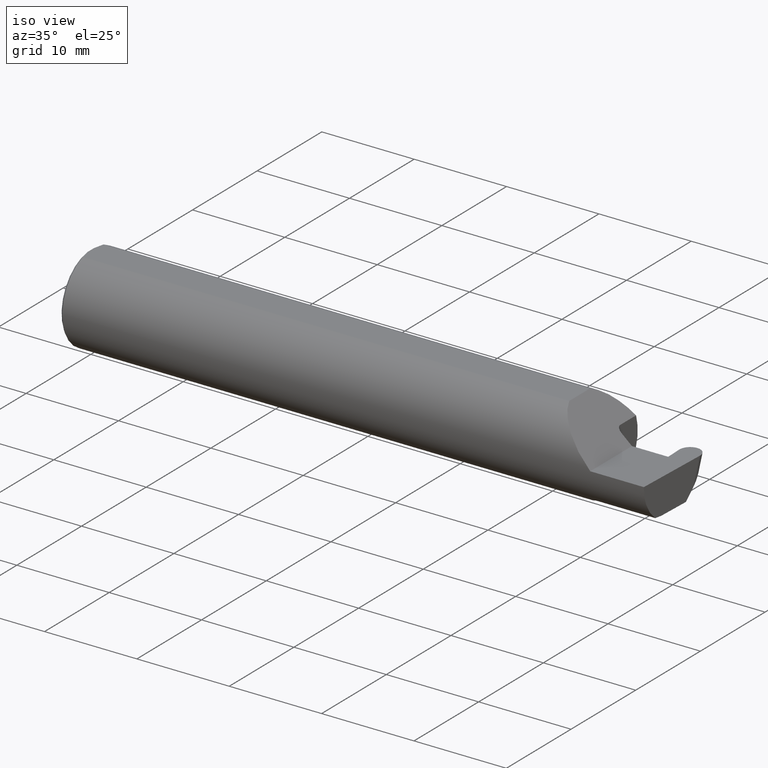
[diagram: clean part render]
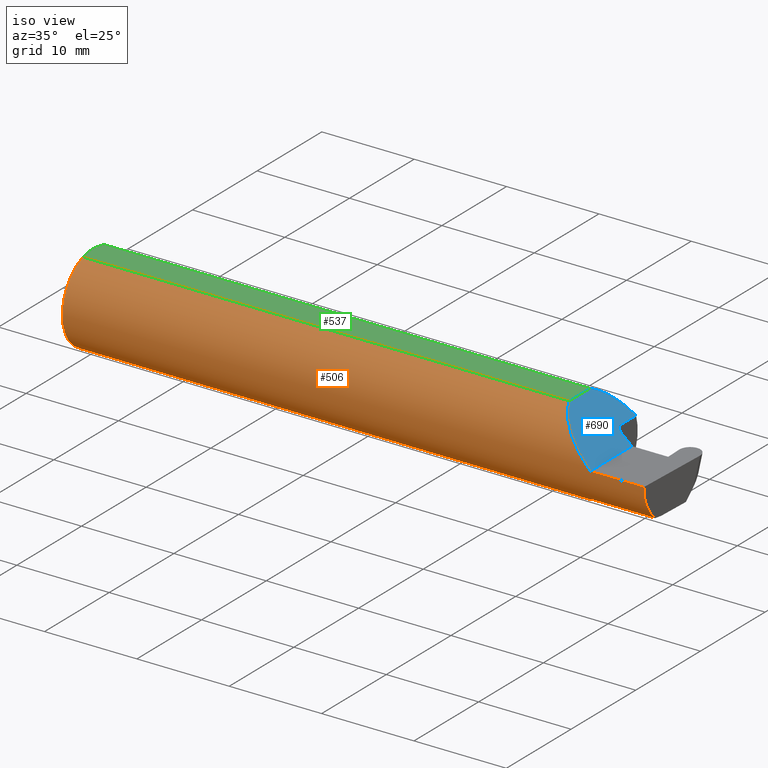
[diagram: same view with three faces highlighted in distinct colors, each labeled with its STEP entity id]
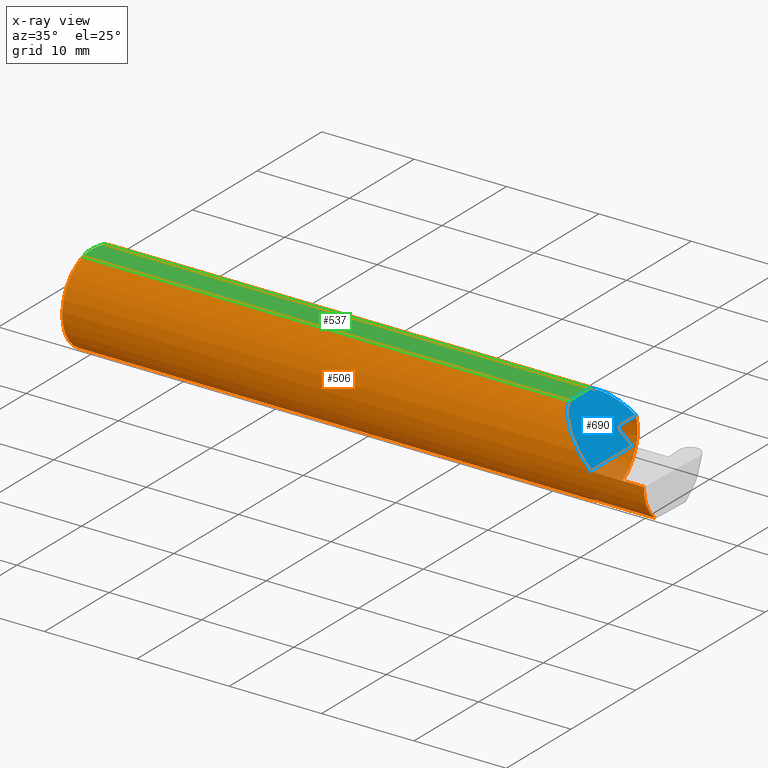
[diagram: x-ray of the same camera — body ghosted, the three highlighted faces saturated]
A machine part, iso view with three faces highlighted in distinct colors.
The next image is the same camera in x-ray (body ghosted, the three faces saturated) — at least one of them is partly hidden behind the body in this view.
Their STEP definitions:

[orange] entity #506 — the highlighted cylindrical surface (partial cylindrical patch) has radius 4.7587 mm, axis along (-1, -0, -0).
#2 = CARTESIAN_POINT ( 'NONE',  ( 2.200358271039143165, -0.07873626113568055196, -0.1700887912276896896 ) ) ;
#7 = CIRCLE ( 'NONE', #386, 0.1873499999999999888 ) ;
#10 = ORIENTED_EDGE ( 'NONE', *, *, #128, .T. ) ;
#16 = CARTESIAN_POINT ( 'NONE',  ( 2.260000000000000231, -0.1873499999999999888, 2.939152317953647352E-17 ) ) ;
#47 = CARTESIAN_POINT ( 'NONE',  ( 2.200000000000000178, -0.06851976604679038685, -0.1743704796142199753 ) ) ;
#50 = CARTESIAN_POINT ( 'NONE',  ( 2.083649999999998670, -0.06325108694718283020, 0.1763499999999999235 ) ) ;
#58 = CARTESIAN_POINT ( 'NONE',  ( 3.749399456654646757E-32, -0.1873499999999999610, 3.061616997868383634E-16 ) ) ;
#59 = ORIENTED_EDGE ( 'NONE', *, *, #570, .T. ) ;
#60 = B_SPLINE_CURVE_WITH_KNOTS ( 'NONE', 3,
 ( #167, #229, #563, #553, #108, #281, #454, #335, #499, #2, #226, #171 ),
 .UNSPECIFIED., .F., .F.,
 ( 4, 2, 2, 2, 2, 4 ),
 ( 1.967976973658592312E-07, 0.0002120314145722274079, 0.0004238660314470889213, 0.0008475352651968000219, 0.001271204498946511014, 0.001694873732696222006 ),
 .UNSPECIFIED. ) ;
#74 = VERTEX_POINT ( 'NONE', #131 ) ;
#96 = DIRECTION ( 'NONE',  ( 1.000000000000000000, 0.000000000000000000, 0.000000000000000000 ) ) ;
#98 = ORIENTED_EDGE ( 'NONE', *, *, #492, .T. ) ;
#103 = VERTEX_POINT ( 'NONE', #50 ) ;
#107 = VERTEX_POINT ( 'NONE', #381 ) ;
#108 = CARTESIAN_POINT ( 'NONE',  ( 2.213203859946834662, -0.1120371980050636485, -0.1501764597936561252 ) ) ;
#110 = ORIENTED_EDGE ( 'NONE', *, *, #319, .F. ) ;
#111 = DIRECTION ( 'NONE',  ( 0.000000000000000000, 0.000000000000000000, -1.000000000000000000 ) ) ;
#120 = VERTEX_POINT ( 'NONE', #47 ) ;
#128 = EDGE_CURVE ( 'NONE', #678, #401, #299, .T. ) ;
#130 = FACE_OUTER_BOUND ( 'NONE', #463, .T. ) ;
#131 = CARTESIAN_POINT ( 'NONE',  ( 2.225000000000000089, -0.1172600179964003730, -0.1461167706989306148 ) ) ;
#133 = CARTESIAN_POINT ( 'NONE',  ( 0.000000000000000000, 0.000000000000000000, 0.000000000000000000 ) ) ;
#142 = CARTESIAN_POINT ( 'NONE',  ( 2.488576259503493926, -0.1873499999999999888, 0.000000000000000000 ) ) ;
#146 = CARTESIAN_POINT ( 'NONE',  ( 2.200000000000000178, 0.000000000000000000, 0.000000000000000000 ) ) ;
#147 = ORIENTED_EDGE ( 'NONE', *, *, #513, .F. ) ;
#153 = DIRECTION ( 'NONE',  ( 0.000000000000000000, 0.000000000000000000, 1.000000000000000000 ) ) ;
#167 = CARTESIAN_POINT ( 'NONE',  ( 2.225000000000000089, -0.1172600179964003730, -0.1461167706989306148 ) ) ;
#170 = EDGE_CURVE ( 'NONE', #443, #360, #266, .T. ) ;
#171 = CARTESIAN_POINT ( 'NONE',  ( 2.200000000000000178, -0.06851976604679038685, -0.1743704796142199753 ) ) ;
#194 = VERTEX_POINT ( 'NONE', #442 ) ;
#200 = EDGE_CURVE ( 'NONE', #120, #573, #374, .T. ) ;
#201 = CARTESIAN_POINT ( 'NONE',  ( 0.000000000000000000, 0.06325108694718235836, 0.1763499999999999235 ) ) ;
#208 = CARTESIAN_POINT ( 'NONE',  ( 2.488471823259917226, -0.1172600179964003730, -0.1461167706989304760 ) ) ;
#214 = ORIENTED_EDGE ( 'NONE', *, *, #652, .F. ) ;
#226 = CARTESIAN_POINT ( 'NONE',  ( 2.199999999999999289, -0.07368234487347168071, -0.1723418180300748670 ) ) ;
#229 = CARTESIAN_POINT ( 'NONE',  ( 2.222174967710398796, -0.1172600179964003314, -0.1461167706989305870 ) ) ;
#233 = CARTESIAN_POINT ( 'NONE',  ( 2.178182770154592163, -0.1873500000000000443, 0.08181722984540684696 ) ) ;
#236 = CARTESIAN_POINT ( 'NONE',  ( 2.260000000000000231, -0.1873499999999999888, 2.939152317953647352E-17 ) ) ;
#245 = VERTEX_POINT ( 'NONE', #16 ) ;
#262 = EDGE_CURVE ( 'NONE', #401, #245, #405, .T. ) ;
#266 = LINE ( 'NONE', #201, #290 ) ;
#274 = CARTESIAN_POINT ( 'NONE',  ( 2.200000000000000178, 0.1774824568795463631, 0.05999999999999961614 ) ) ;
#281 = CARTESIAN_POINT ( 'NONE',  ( 2.208439486659306450, -0.1064616213911156045, -0.1542305641651502135 ) ) ;
#287 = ORIENTED_EDGE ( 'NONE', *, *, #170, .F. ) ;
#290 = VECTOR ( 'NONE', #430, 39.37007874015748143 ) ;
#297 = CYLINDRICAL_SURFACE ( 'NONE', #330, 0.1873499999999999888 ) ;
#299 =( BOUNDED_CURVE ( )  B_SPLINE_CURVE ( 3, ( #208, #485, #701, #142 ),
 .UNSPECIFIED., .F., .F. ) 
 B_SPLINE_CURVE_WITH_KNOTS ( ( 4, 4 ),
 ( 5.852427379562184839, 6.746954780470634461 ),
 .UNSPECIFIED. ) 
 CURVE ( )  GEOMETRIC_REPRESENTATION_ITEM ( )  RATIONAL_B_SPLINE_CURVE ( ( 1.000000000000000000, 0.9344226172588800949, 0.9344226172588800949, 1.000000000000000000 ) ) 
 REPRESENTATION_ITEM ( '' )  );
#307 = AXIS2_PLACEMENT_3D ( 'NONE', #323, #96, #653 ) ;
#319 = EDGE_CURVE ( 'NONE', #107, #103, #669, .T. ) ;
#323 = CARTESIAN_POINT ( 'NONE',  ( 0.009999999999999346217, 0.000000000000000000, 0.000000000000000000 ) ) ;
#326 = CARTESIAN_POINT ( 'NONE',  ( 2.144848040052163896, 0.1588376980957759976, 0.1151519599478346284 ) ) ;
#328 =( BOUNDED_CURVE ( )  B_SPLINE_CURVE ( 3, ( #236, #233, #680, #568 ),
 .UNSPECIFIED., .F., .F. ) 
 B_SPLINE_CURVE_WITH_KNOTS ( ( 4, 4 ),
 ( 4.712388980384688786, 5.938809479923471635 ),
 .UNSPECIFIED. ) 
 CURVE ( )  GEOMETRIC_REPRESENTATION_ITEM ( )  RATIONAL_B_SPLINE_CURVE ( ( 1.000000000000000000, 0.8785364999009659392, 0.8785364999009659392, 1.000000000000000000 ) ) 
 REPRESENTATION_ITEM ( '' )  );
#330 = AXIS2_PLACEMENT_3D ( 'NONE', #133, #520, #153 ) ;
#331 = CARTESIAN_POINT ( 'NONE',  ( 2.083649999999998670, 0.06325108694718283020, 0.1763499999999999235 ) ) ;
#332 = CARTESIAN_POINT ( 'NONE',  ( 0.000000000000000000, -0.06325108694718235836, 0.1763499999999999235 ) ) ;
#334 = EDGE_CURVE ( 'NONE', #107, #194, #7, .T. ) ;
#335 = CARTESIAN_POINT ( 'NONE',  ( 2.202960551809340028, -0.09317341542745716243, -0.1626248379125198873 ) ) ;
#350 = CARTESIAN_POINT ( 'NONE',  ( 2.488576259503493926, -0.1873499999999999888, 0.000000000000000000 ) ) ;
#360 = VERTEX_POINT ( 'NONE', #511 ) ;
#371 = CARTESIAN_POINT ( 'NONE',  ( 2.200000000000000178, 0.1774824568795463631, 0.05999999999999961614 ) ) ;
#374 = CIRCLE ( 'NONE', #649, 0.1873499999999999888 ) ;
#381 = CARTESIAN_POINT ( 'NONE',  ( 0.009999999999999346217, -0.06325108694718235836, 0.1763499999999999235 ) ) ;
#386 = AXIS2_PLACEMENT_3D ( 'NONE', #616, #612, #111 ) ;
#401 = VERTEX_POINT ( 'NONE', #350 ) ;
#405 = LINE ( 'NONE', #58, #448 ) ;
#430 = DIRECTION ( 'NONE',  ( -1.000000000000000000, -0.000000000000000000, -0.000000000000000000 ) ) ;
#432 = DIRECTION ( 'NONE',  ( -1.000000000000000000, -6.448948547284692709E-16, -0.000000000000000000 ) ) ;
#442 = CARTESIAN_POINT ( 'NONE',  ( 0.009999999999999346217, 0.000000000000000000, -0.1873499999999999888 ) ) ;
#443 = VERTEX_POINT ( 'NONE', #687 ) ;
#448 = VECTOR ( 'NONE', #561, 39.37007874015748143 ) ;
#453 = ORIENTED_EDGE ( 'NONE', *, *, #671, .T. ) ;
#454 = CARTESIAN_POINT ( 'NONE',  ( 2.206304331342287650, -0.1022198306720688288, -0.1570962426853820260 ) ) ;
#463 = EDGE_LOOP ( 'NONE', ( #147, #10, #507, #98, #110, #596, #59, #287, #453, #558, #214 ) ) ;
#485 = CARTESIAN_POINT ( 'NONE',  ( 2.487529306701961485, -0.1623470442677539816, -0.1099340280425340349 ) ) ;
#492 = EDGE_CURVE ( 'NONE', #245, #103, #328, .T. ) ;
#499 = CARTESIAN_POINT ( 'NONE',  ( 2.201843912362377864, -0.08846956905169063579, -0.1652353808078973474 ) ) ;
#506 = ADVANCED_FACE ( 'NONE', ( #130 ), #297, .T. ) ;
#507 = ORIENTED_EDGE ( 'NONE', *, *, #262, .T. ) ;
#511 = CARTESIAN_POINT ( 'NONE',  ( 0.009999999999999346217, 0.06325108694718235836, 0.1763499999999999235 ) ) ;
#513 = EDGE_CURVE ( 'NONE', #678, #74, #531, .T. ) ;
#520 = DIRECTION ( 'NONE',  ( -1.000000000000000000, -0.000000000000000000, -0.000000000000000000 ) ) ;
#525 = VECTOR ( 'NONE', #432, 39.37007874015748143 ) ;
#531 = LINE ( 'NONE', #597, #525 ) ;
#548 = CARTESIAN_POINT ( 'NONE',  ( 2.488471823259917226, -0.1172600179964003730, -0.1461167706989304760 ) ) ;
#549 = DIRECTION ( 'NONE',  ( 0.000000000000000000, 1.000000000000000000, 0.000000000000000000 ) ) ;
#553 = CARTESIAN_POINT ( 'NONE',  ( 2.215028532764138358, -0.1137241120808232669, -0.1488947809299406566 ) ) ;
#556 = CARTESIAN_POINT ( 'NONE',  ( 2.103305020982357387, 0.1180511404724818164, 0.1566949790176410395 ) ) ;
#558 = ORIENTED_EDGE ( 'NONE', *, *, #200, .F. ) ;
#561 = DIRECTION ( 'NONE',  ( -1.000000000000000000, -0.000000000000000000, -0.000000000000000000 ) ) ;
#563 = CARTESIAN_POINT ( 'NONE',  ( 2.219511795768554840, -0.1163687266324231473, -0.1468371510166791294 ) ) ;
#568 = CARTESIAN_POINT ( 'NONE',  ( 2.083649999999998670, -0.06325108694718283020, 0.1763499999999999235 ) ) ;
#570 = EDGE_CURVE ( 'NONE', #194, #360, #621, .T. ) ;
#573 = VERTEX_POINT ( 'NONE', #371 ) ;
#576 =( BOUNDED_CURVE ( )  B_SPLINE_CURVE ( 3, ( #331, #556, #326, #274 ),
 .UNSPECIFIED., .F., .F. ) 
 B_SPLINE_CURVE_WITH_KNOTS ( ( 4, 4 ),
 ( 0.3443758272561143752, 1.244796402594304796 ),
 .UNSPECIFIED. ) 
 CURVE ( )  GEOMETRIC_REPRESENTATION_ITEM ( )  RATIONAL_B_SPLINE_CURVE ( ( 1.000000000000000000, 0.9335704097038357574, 0.9335704097038357574, 1.000000000000000000 ) ) 
 REPRESENTATION_ITEM ( '' )  );
#596 = ORIENTED_EDGE ( 'NONE', *, *, #334, .T. ) ;
#597 = CARTESIAN_POINT ( 'NONE',  ( 2.318402844999999601, -0.1172600179964004702, -0.1461167706989304760 ) ) ;
#604 = DIRECTION ( 'NONE',  ( 1.000000000000000000, 6.448948547284692709E-16, 0.000000000000000000 ) ) ;
#612 = DIRECTION ( 'NONE',  ( 1.000000000000000000, 0.000000000000000000, 0.000000000000000000 ) ) ;
#616 = CARTESIAN_POINT ( 'NONE',  ( 0.009999999999999346217, 0.000000000000000000, 0.000000000000000000 ) ) ;
#621 = CIRCLE ( 'NONE', #307, 0.1873499999999999888 ) ;
#649 = AXIS2_PLACEMENT_3D ( 'NONE', #146, #604, #549 ) ;
#652 = EDGE_CURVE ( 'NONE', #74, #120, #60, .T. ) ;
#653 = DIRECTION ( 'NONE',  ( 0.000000000000000000, 0.000000000000000000, -1.000000000000000000 ) ) ;
#662 = DIRECTION ( 'NONE',  ( 1.000000000000000000, 0.000000000000000000, 0.000000000000000000 ) ) ;
#669 = LINE ( 'NONE', #332, #689 ) ;
#671 = EDGE_CURVE ( 'NONE', #443, #573, #576, .T. ) ;
#678 = VERTEX_POINT ( 'NONE', #548 ) ;
#680 = CARTESIAN_POINT ( 'NONE',  ( 2.111272250967329622, -0.1402645296119147678, 0.1487277490326685825 ) ) ;
#687 = CARTESIAN_POINT ( 'NONE',  ( 2.083649999999998670, 0.06325108694718283020, 0.1763499999999999235 ) ) ;
#689 = VECTOR ( 'NONE', #662, 39.37007874015748143 ) ;
#701 = CARTESIAN_POINT ( 'NONE',  ( 2.487566561880238947, -0.1873499999999999610, -0.05781030015605125721 ) ) ;

[blue] entity #690 — the highlighted planar face has unit normal (-0.7071, 0, -0.7071).
#11 = CARTESIAN_POINT ( 'NONE',  ( 2.225000000000000089, 0.06250952145814828165, 0.03500000000000009354 ) ) ;
#14 = ORIENTED_EDGE ( 'NONE', *, *, #492, .F. ) ;
#16 = CARTESIAN_POINT ( 'NONE',  ( 2.260000000000000231, -0.1873499999999999888, 2.939152317953647352E-17 ) ) ;
#50 = CARTESIAN_POINT ( 'NONE',  ( 2.083649999999998670, -0.06325108694718283020, 0.1763499999999999235 ) ) ;
#61 = CARTESIAN_POINT ( 'NONE',  ( 2.200000000000000178, 0.08104282222773613598, 0.05999999999999955369 ) ) ;
#68 = ORIENTED_EDGE ( 'NONE', *, *, #643, .F. ) ;
#77 = DIRECTION ( 'NONE',  ( 0.000000000000000000, 1.000000000000000000, 0.000000000000000000 ) ) ;
#95 = EDGE_CURVE ( 'NONE', #245, #592, #213, .T. ) ;
#103 = VERTEX_POINT ( 'NONE', #50 ) ;
#114 = DIRECTION ( 'NONE',  ( 6.448948547284691722E-16, -1.000000000000000000, -6.448948547284629600E-16 ) ) ;
#166 = ORIENTED_EDGE ( 'NONE', *, *, #277, .F. ) ;
#174 = ORIENTED_EDGE ( 'NONE', *, *, #671, .F. ) ;
#213 = LINE ( 'NONE', #644, #594 ) ;
#215 = CARTESIAN_POINT ( 'NONE',  ( 2.260000000000000231, -0.2500000000000000555, 2.939152317953647352E-17 ) ) ;
#216 = LINE ( 'NONE', #343, #700 ) ;
#222 = FACE_OUTER_BOUND ( 'NONE', #641, .T. ) ;
#230 = CARTESIAN_POINT ( 'NONE',  ( 2.222331837506049901, 0.06186927743178083361, 0.03766816249395004562 ) ) ;
#232 = EDGE_CURVE ( 'NONE', #573, #661, #216, .T. ) ;
#233 = CARTESIAN_POINT ( 'NONE',  ( 2.178182770154592163, -0.1873500000000000443, 0.08181722984540684696 ) ) ;
#236 = CARTESIAN_POINT ( 'NONE',  ( 2.260000000000000231, -0.1873499999999999888, 2.939152317953647352E-17 ) ) ;
#245 = VERTEX_POINT ( 'NONE', #16 ) ;
#263 = ORIENTED_EDGE ( 'NONE', *, *, #457, .F. ) ;
#274 = CARTESIAN_POINT ( 'NONE',  ( 2.200000000000000178, 0.1774824568795463631, 0.05999999999999961614 ) ) ;
#275 = CARTESIAN_POINT ( 'NONE',  ( 2.200842198961673102, 0.07338839382613021600, 0.05915780103832719156 ) ) ;
#277 = EDGE_CURVE ( 'NONE', #661, #292, #533, .T. ) ;
#283 = CARTESIAN_POINT ( 'NONE',  ( 2.199999999999999734, 0.07723724220654794304, 0.05999999999999977573 ) ) ;
#292 = VERTEX_POINT ( 'NONE', #391 ) ;
#311 = CARTESIAN_POINT ( 'NONE',  ( 2.260000000000000231, 0.06664999999999991764, 2.939152317953647352E-17 ) ) ;
#326 = CARTESIAN_POINT ( 'NONE',  ( 2.144848040052163896, 0.1588376980957759976, 0.1151519599478346284 ) ) ;
#328 =( BOUNDED_CURVE ( )  B_SPLINE_CURVE ( 3, ( #236, #233, #680, #568 ),
 .UNSPECIFIED., .F., .F. ) 
 B_SPLINE_CURVE_WITH_KNOTS ( ( 4, 4 ),
 ( 4.712388980384688786, 5.938809479923471635 ),
 .UNSPECIFIED. ) 
 CURVE ( )  GEOMETRIC_REPRESENTATION_ITEM ( )  RATIONAL_B_SPLINE_CURVE ( ( 1.000000000000000000, 0.8785364999009659392, 0.8785364999009659392, 1.000000000000000000 ) ) 
 REPRESENTATION_ITEM ( '' )  );
#331 = CARTESIAN_POINT ( 'NONE',  ( 2.083649999999998670, 0.06325108694718283020, 0.1763499999999999235 ) ) ;
#341 = PLANE ( 'NONE',  #346 ) ;
#343 = CARTESIAN_POINT ( 'NONE',  ( 2.200000000000000178, -0.2500000000000001110, 0.05999999999999934552 ) ) ;
#346 = AXIS2_PLACEMENT_3D ( 'NONE', #215, #397, #608 ) ;
#347 = CARTESIAN_POINT ( 'NONE',  ( 2.219643712645606559, 0.06157137645965355538, 0.04035628735439351217 ) ) ;
#354 = CARTESIAN_POINT ( 'NONE',  ( 2.083649999999998670, -0.2500000000000000555, 0.1763499999999999235 ) ) ;
#359 = LINE ( 'NONE', #354, #552 ) ;
#371 = CARTESIAN_POINT ( 'NONE',  ( 2.200000000000000178, 0.1774824568795463631, 0.05999999999999961614 ) ) ;
#383 =( BOUNDED_CURVE ( )  B_SPLINE_CURVE ( 3, ( #11, #387, #503, #393 ),
 .UNSPECIFIED., .F., .F. ) 
 B_SPLINE_CURVE_WITH_KNOTS ( ( 4, 4 ),
 ( 1.335292090074097437, 1.570796326794897224 ),
 .UNSPECIFIED. ) 
 CURVE ( )  GEOMETRIC_REPRESENTATION_ITEM ( )  RATIONAL_B_SPLINE_CURVE ( ( 1.000000000000000000, 0.9953834841226971708, 0.9953834841226971708, 1.000000000000000000 ) ) 
 REPRESENTATION_ITEM ( '' )  );
#387 = CARTESIAN_POINT ( 'NONE',  ( 2.236476718690367793, 0.06526343940705725544, 0.02352328130963214636 ) ) ;
#388 = CARTESIAN_POINT ( 'NONE',  ( 2.204146777195072016, 0.06733032564037055856, 0.05585322280492718838 ) ) ;
#391 = CARTESIAN_POINT ( 'NONE',  ( 2.225000000000000089, 0.06250952145814828165, 0.03500000000000009354 ) ) ;
#393 = CARTESIAN_POINT ( 'NONE',  ( 2.260000000000000231, 0.06664999999999991764, 2.939152317953647352E-17 ) ) ;
#397 = DIRECTION ( 'NONE',  ( -0.7071067811865441310, 0.000000000000000000, -0.7071067811865510144 ) ) ;
#443 = VERTEX_POINT ( 'NONE', #687 ) ;
#457 = EDGE_CURVE ( 'NONE', #103, #443, #359, .T. ) ;
#492 = EDGE_CURVE ( 'NONE', #245, #103, #328, .T. ) ;
#493 = CARTESIAN_POINT ( 'NONE',  ( 2.225000000000000089, 0.06250952145814828165, 0.03500000000000009354 ) ) ;
#496 = CARTESIAN_POINT ( 'NONE',  ( 2.214233757172356043, 0.06188798250606976359, 0.04576624282764354262 ) ) ;
#503 = CARTESIAN_POINT ( 'NONE',  ( 2.248197494504676097, 0.06665000000000001479, 0.01180250549532441823 ) ) ;
#504 = CARTESIAN_POINT ( 'NONE',  ( 2.206491315391052144, 0.06519110945230532916, 0.05350868460894746270 ) ) ;
#522 = ORIENTED_EDGE ( 'NONE', *, *, #232, .F. ) ;
#533 = B_SPLINE_CURVE_WITH_KNOTS ( 'NONE', 3,
 ( #61, #283, #275, #388, #504, #609, #496, #347, #230, #493 ),
 .UNSPECIFIED., .F., .F.,
 ( 4, 2, 2, 2, 4 ),
 ( 0.0002788109322551143008, 0.0005687008269983710425, 0.0008585907217416278384, 0.001148480616484884526, 0.001438370511228141213 ),
 .UNSPECIFIED. ) ;
#552 = VECTOR ( 'NONE', #77, 39.37007874015748143 ) ;
#556 = CARTESIAN_POINT ( 'NONE',  ( 2.103305020982357387, 0.1180511404724818164, 0.1566949790176410395 ) ) ;
#568 = CARTESIAN_POINT ( 'NONE',  ( 2.083649999999998670, -0.06325108694718283020, 0.1763499999999999235 ) ) ;
#573 = VERTEX_POINT ( 'NONE', #371 ) ;
#576 =( BOUNDED_CURVE ( )  B_SPLINE_CURVE ( 3, ( #331, #556, #326, #274 ),
 .UNSPECIFIED., .F., .F. ) 
 B_SPLINE_CURVE_WITH_KNOTS ( ( 4, 4 ),
 ( 0.3443758272561143752, 1.244796402594304796 ),
 .UNSPECIFIED. ) 
 CURVE ( )  GEOMETRIC_REPRESENTATION_ITEM ( )  RATIONAL_B_SPLINE_CURVE ( ( 1.000000000000000000, 0.9335704097038357574, 0.9335704097038357574, 1.000000000000000000 ) ) 
 REPRESENTATION_ITEM ( '' )  );
#592 = VERTEX_POINT ( 'NONE', #311 ) ;
#594 = VECTOR ( 'NONE', #654, 39.37007874015748143 ) ;
#608 = DIRECTION ( 'NONE',  ( -0.7071067811865509034, 0.000000000000000000, 0.7071067811865440200 ) ) ;
#609 = CARTESIAN_POINT ( 'NONE',  ( 2.211575684638518169, 0.06248591091235528028, 0.04842431536148216614 ) ) ;
#611 = CARTESIAN_POINT ( 'NONE',  ( 2.200000000000000178, 0.08104282222773613598, 0.05999999999999955369 ) ) ;
#613 = ORIENTED_EDGE ( 'NONE', *, *, #95, .T. ) ;
#641 = EDGE_LOOP ( 'NONE', ( #68, #166, #522, #174, #263, #14, #613 ) ) ;
#643 = EDGE_CURVE ( 'NONE', #292, #592, #383, .T. ) ;
#644 = CARTESIAN_POINT ( 'NONE',  ( 2.260000000000000231, -0.2500000000000000555, 2.939152317953647352E-17 ) ) ;
#654 = DIRECTION ( 'NONE',  ( -0.000000000000000000, 1.000000000000000000, -0.000000000000000000 ) ) ;
#661 = VERTEX_POINT ( 'NONE', #611 ) ;
#671 = EDGE_CURVE ( 'NONE', #443, #573, #576, .T. ) ;
#680 = CARTESIAN_POINT ( 'NONE',  ( 2.111272250967329622, -0.1402645296119147678, 0.1487277490326685825 ) ) ;
#687 = CARTESIAN_POINT ( 'NONE',  ( 2.083649999999998670, 0.06325108694718283020, 0.1763499999999999235 ) ) ;
#690 = ADVANCED_FACE ( 'NONE', ( #222 ), #341, .F. ) ;
#700 = VECTOR ( 'NONE', #114, 39.37007874015748143 ) ;

[green] entity #537 — the highlighted planar face has unit normal (0, 0, 1).
#30 = DIRECTION ( 'NONE',  ( -0.000000000000000000, 1.000000000000000000, -0.000000000000000000 ) ) ;
#31 = ORIENTED_EDGE ( 'NONE', *, *, #356, .F. ) ;
#39 = CARTESIAN_POINT ( 'NONE',  ( 0.000000000000000000, 0.01880691362239451242, 0.1763499999999999235 ) ) ;
#50 = CARTESIAN_POINT ( 'NONE',  ( 2.083649999999998670, -0.06325108694718283020, 0.1763499999999999235 ) ) ;
#77 = DIRECTION ( 'NONE',  ( 0.000000000000000000, 1.000000000000000000, 0.000000000000000000 ) ) ;
#89 = CARTESIAN_POINT ( 'NONE',  ( 0.000000000000000000, 0.01880691362239451242, 0.1763499999999999235 ) ) ;
#101 = DIRECTION ( 'NONE',  ( 0.000000000000000000, 0.000000000000000000, 1.000000000000000000 ) ) ;
#103 = VERTEX_POINT ( 'NONE', #50 ) ;
#107 = VERTEX_POINT ( 'NONE', #381 ) ;
#148 = EDGE_CURVE ( 'NONE', #107, #209, #444, .T. ) ;
#150 = CARTESIAN_POINT ( 'NONE',  ( 2.876828993045917215, 0.1873499999999998500, 0.1763499999999999235 ) ) ;
#151 = CARTESIAN_POINT ( 'NONE',  ( 0.000000000000000000, -0.01880691362239451242, 0.1763499999999999235 ) ) ;
#163 = VERTEX_POINT ( 'NONE', #89 ) ;
#170 = EDGE_CURVE ( 'NONE', #443, #360, #266, .T. ) ;
#201 = CARTESIAN_POINT ( 'NONE',  ( 0.000000000000000000, 0.06325108694718235836, 0.1763499999999999235 ) ) ;
#207 = DIRECTION ( 'NONE',  ( 1.000000000000000000, 0.000000000000000000, -0.000000000000000000 ) ) ;
#209 = VERTEX_POINT ( 'NONE', #251 ) ;
#244 = LINE ( 'NONE', #580, #412 ) ;
#249 = EDGE_LOOP ( 'NONE', ( #589, #456, #684, #607, #31, #490 ) ) ;
#250 = CARTESIAN_POINT ( 'NONE',  ( 0.001616639753276218755, 0.03405189565400963680, 0.1763499999999999235 ) ) ;
#251 = CARTESIAN_POINT ( 'NONE',  ( 0.000000000000000000, -0.01880691362239451242, 0.1763499999999999235 ) ) ;
#258 = CARTESIAN_POINT ( 'NONE',  ( 0.009999999999999346217, -0.06325108694718235836, 0.1763499999999999235 ) ) ;
#266 = LINE ( 'NONE', #201, #290 ) ;
#270 = AXIS2_PLACEMENT_3D ( 'NONE', #150, #101, #207 ) ;
#290 = VECTOR ( 'NONE', #430, 39.37007874015748143 ) ;
#308 = FACE_OUTER_BOUND ( 'NONE', #249, .T. ) ;
#319 = EDGE_CURVE ( 'NONE', #107, #103, #669, .T. ) ;
#332 = CARTESIAN_POINT ( 'NONE',  ( 0.000000000000000000, -0.06325108694718235836, 0.1763499999999999235 ) ) ;
#354 = CARTESIAN_POINT ( 'NONE',  ( 2.083649999999998670, -0.2500000000000000555, 0.1763499999999999235 ) ) ;
#356 = EDGE_CURVE ( 'NONE', #209, #163, #244, .T. ) ;
#359 = LINE ( 'NONE', #354, #552 ) ;
#360 = VERTEX_POINT ( 'NONE', #511 ) ;
#369 = CARTESIAN_POINT ( 'NONE',  ( 0.001595548104417217512, -0.03385300050298979679, 0.1763499999999999235 ) ) ;
#381 = CARTESIAN_POINT ( 'NONE',  ( 0.009999999999999346217, -0.06325108694718235836, 0.1763499999999999235 ) ) ;
#412 = VECTOR ( 'NONE', #30, 39.37007874015748143 ) ;
#430 = DIRECTION ( 'NONE',  ( -1.000000000000000000, -0.000000000000000000, -0.000000000000000000 ) ) ;
#443 = VERTEX_POINT ( 'NONE', #687 ) ;
#444 = B_SPLINE_CURVE_WITH_KNOTS ( 'NONE', 3,
 ( #258, #489, #369, #151 ),
 .UNSPECIFIED., .F., .F.,
 ( 4, 4 ),
 ( 0.009771445421851449736, 0.01092787937989102981 ),
 .UNSPECIFIED. ) ;
#456 = ORIENTED_EDGE ( 'NONE', *, *, #457, .T. ) ;
#457 = EDGE_CURVE ( 'NONE', #103, #443, #359, .T. ) ;
#484 = PLANE ( 'NONE',  #270 ) ;
#488 = B_SPLINE_CURVE_WITH_KNOTS ( 'NONE', 3,
 ( #39, #250, #703, #693 ),
 .UNSPECIFIED., .F., .F.,
 ( 4, 4 ),
 ( 0.01188664626022267051, 0.01304646959483758001 ),
 .UNSPECIFIED. ) ;
#489 = CARTESIAN_POINT ( 'NONE',  ( 0.005151108632379595466, -0.04888864921576189376, 0.1763499999999999235 ) ) ;
#490 = ORIENTED_EDGE ( 'NONE', *, *, #148, .F. ) ;
#511 = CARTESIAN_POINT ( 'NONE',  ( 0.009999999999999346217, 0.06325108694718235836, 0.1763499999999999235 ) ) ;
#537 = ADVANCED_FACE ( 'NONE', ( #308 ), #484, .T. ) ;
#551 = EDGE_CURVE ( 'NONE', #163, #360, #488, .T. ) ;
#552 = VECTOR ( 'NONE', #77, 39.37007874015748143 ) ;
#580 = CARTESIAN_POINT ( 'NONE',  ( 0.000000000000000000, 0.1873499999999998500, 0.1763499999999999235 ) ) ;
#589 = ORIENTED_EDGE ( 'NONE', *, *, #319, .T. ) ;
#607 = ORIENTED_EDGE ( 'NONE', *, *, #551, .F. ) ;
#662 = DIRECTION ( 'NONE',  ( 1.000000000000000000, 0.000000000000000000, 0.000000000000000000 ) ) ;
#669 = LINE ( 'NONE', #332, #689 ) ;
#684 = ORIENTED_EDGE ( 'NONE', *, *, #170, .T. ) ;
#687 = CARTESIAN_POINT ( 'NONE',  ( 2.083649999999998670, 0.06325108694718283020, 0.1763499999999999235 ) ) ;
#689 = VECTOR ( 'NONE', #662, 39.37007874015748143 ) ;
#693 = CARTESIAN_POINT ( 'NONE',  ( 0.009999999999999346217, 0.06325108694718235836, 0.1763499999999999235 ) ) ;
#703 = CARTESIAN_POINT ( 'NONE',  ( 0.005155213631852355663, 0.04890080824240217866, 0.1763499999999999235 ) ) ;